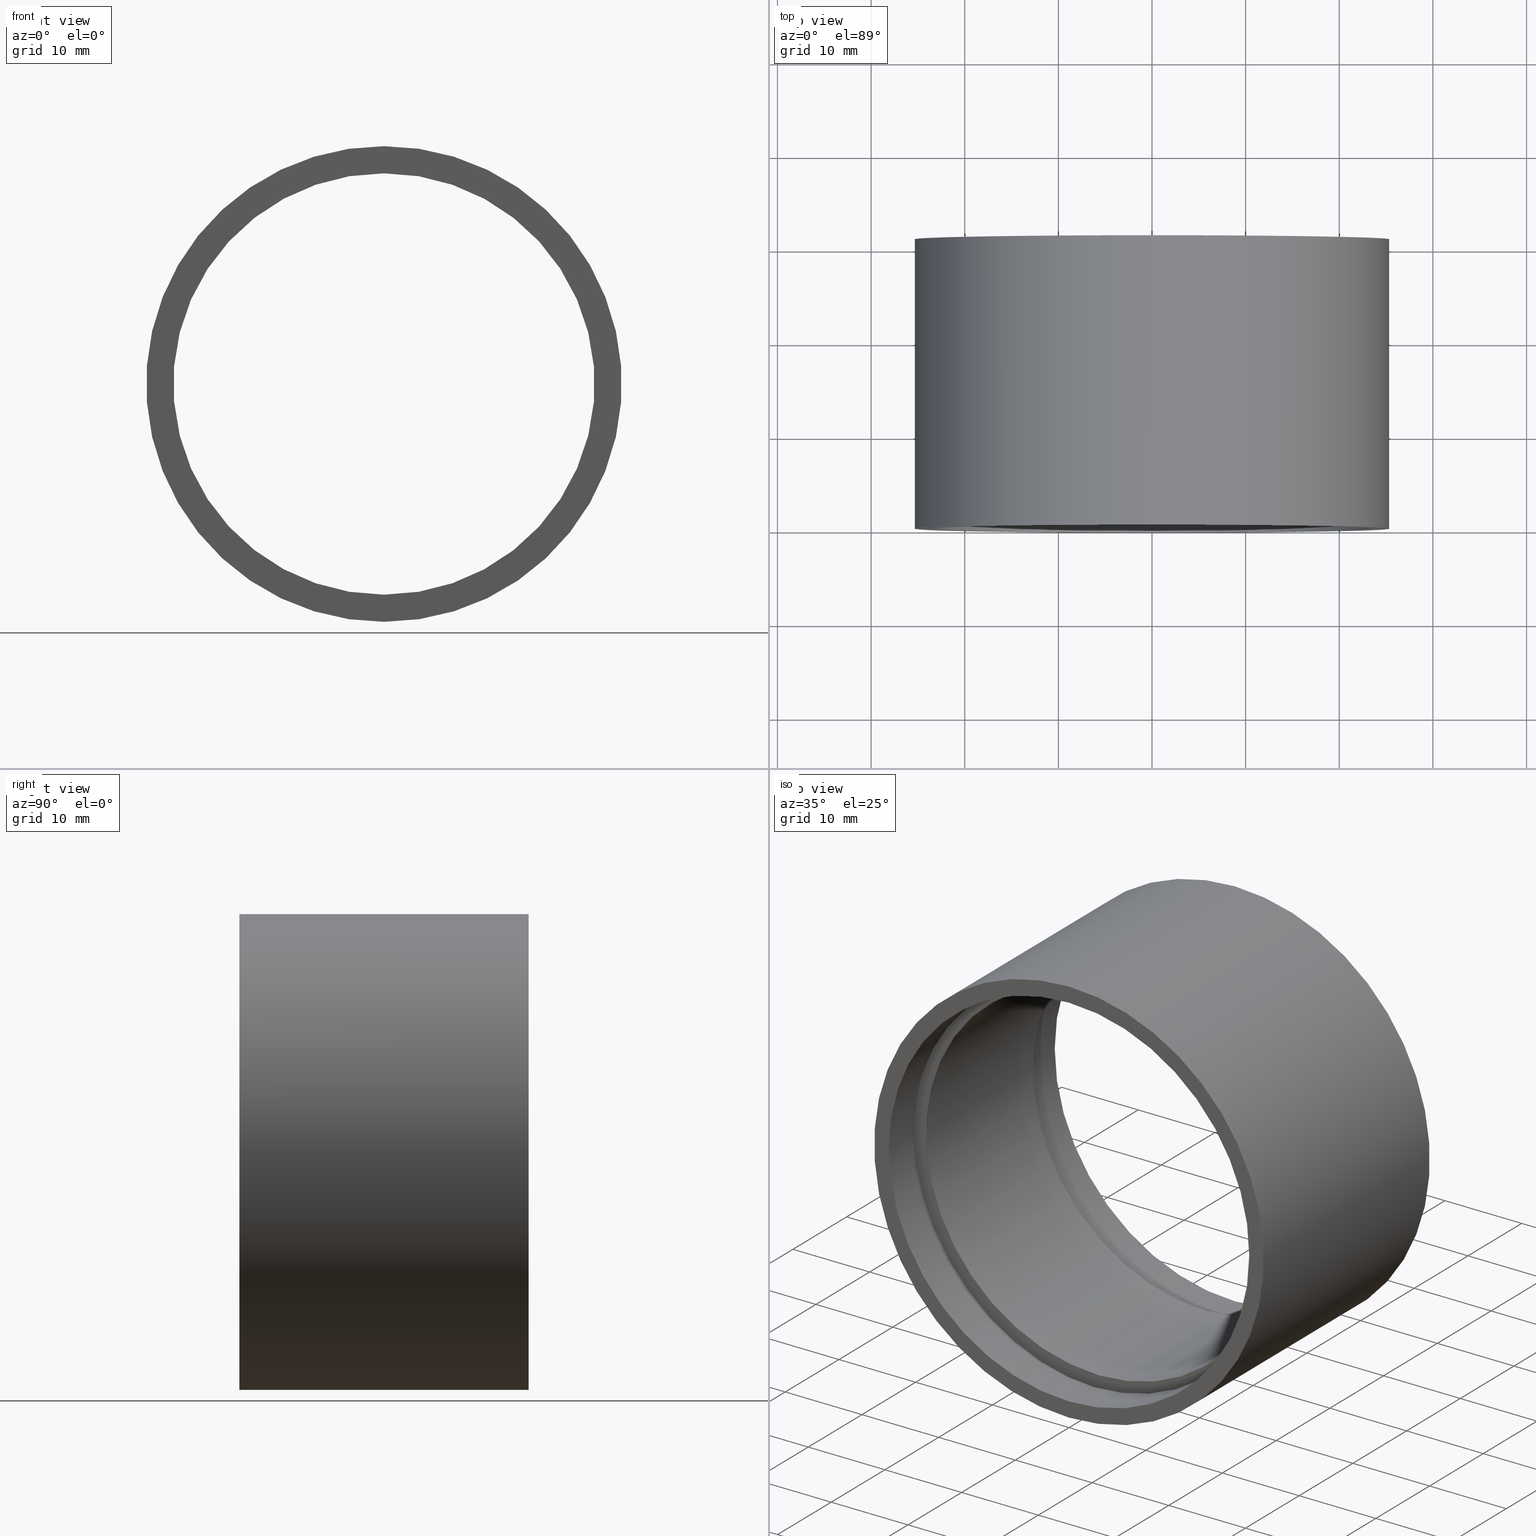
[diagram: canonical four-view strip — front | top / right | iso, engineering-drawing reading convention]
A machine part, canonical four-view strip (front | top / right | iso — engineering-drawing reading convention). The complete STEP part file that produces these views, byte-faithful:
ISO-10303-21;
HEADER;
FILE_DESCRIPTION (( 'STEP AP214' ),
    '1' );
FILE_NAME ('503020.STEP',
    '2019-09-06T02:07:05',
    ( '' ),
    ( '' ),
    'SwSTEP 2.0',
    'SolidWorks 2016',
    '' );
FILE_SCHEMA (( 'AUTOMOTIVE_DESIGN' ));
ENDSEC;

DATA;
#1 = ORIENTED_EDGE ( 'NONE', *, *, #202, .F. ) ;
#2 = VECTOR ( 'NONE', #167, 1000.000000000000000 ) ;
#3 = SURFACE_STYLE_USAGE ( .BOTH. , #408 ) ;
#4 = ADVANCED_FACE ( 'NONE', ( #508, #573 ), #184, .F. ) ;
#5 =( NAMED_UNIT ( * ) SI_UNIT ( $, .STERADIAN. ) SOLID_ANGLE_UNIT ( ) );
#6 = DIRECTION ( 'NONE',  ( 0.0000000000000000000, 0.0000000000000000000, 1.000000000000000000 ) ) ;
#7 = PRODUCT_DEFINITION_FORMATION_WITH_SPECIFIED_SOURCE ( '�κ�', '', #550, .NOT_KNOWN. ) ;
#8 = EDGE_CURVE ( 'NONE', #583, #181, #465, .T. ) ;
#9 =( GEOMETRIC_REPRESENTATION_CONTEXT ( 3 ) GLOBAL_UNCERTAINTY_ASSIGNED_CONTEXT ( ( #63 ) ) GLOBAL_UNIT_ASSIGNED_CONTEXT ( ( #447, #165, #57 ) ) REPRESENTATION_CONTEXT ( 'NONE', 'WORKASPACE' ) );
#10 = CIRCLE ( 'NONE', #500, 24.10000000000001900 ) ;
#11 = DIRECTION ( 'NONE',  ( -0.0000000000000000000, 1.000000000000000000, -0.0000000000000000000 ) ) ;
#12 = FILL_AREA_STYLE_COLOUR ( '', #243 ) ;
#13 = CYLINDRICAL_SURFACE ( 'NONE', #459, 23.50000000000002100 ) ;
#14 = CARTESIAN_POINT ( 'NONE',  ( 0.0000000000000000000, 30.89999999999998400, 0.0000000000000000000 ) ) ;
#15 = ORIENTED_EDGE ( 'NONE', *, *, #236, .F. ) ;
#16 = FACE_OUTER_BOUND ( 'NONE', #560, .T. ) ;
#17 = PLANE ( 'NONE',  #601 ) ;
#18 = FILL_AREA_STYLE ('',( #97 ) ) ;
#19 = SURFACE_SIDE_STYLE ('',( #119 ) ) ;
#20 = EDGE_CURVE ( 'NONE', #342, #89, #39, .T. ) ;
#21 = SURFACE_SIDE_STYLE ('',( #371 ) ) ;
#22 = DIRECTION ( 'NONE',  ( 0.0000000000000000000, 0.0000000000000000000, 1.000000000000000000 ) ) ;
#23 = CIRCLE ( 'NONE', #150, 24.10000000000003700 ) ;
#24 = PRESENTATION_LAYER_ASSIGNMENT (  '', '', ( #418 ) ) ;
#25 = CARTESIAN_POINT ( 'NONE',  ( 2.951398785945126000E-015, 26.39999999999997700, -24.10000000000003700 ) ) ;
#26 = ORIENTED_EDGE ( 'NONE', *, *, #65, .T. ) ;
#27 = CARTESIAN_POINT ( 'NONE',  ( 0.0000000000000000000, -2.775557561562891400E-014, 0.0000000000000000000 ) ) ;
#28 = DIRECTION ( 'NONE',  ( -0.0000000000000000000, 1.000000000000000000, -0.0000000000000000000 ) ) ;
#29 = DIRECTION ( 'NONE',  ( 0.0000000000000000000, 0.0000000000000000000, 1.000000000000000000 ) ) ;
#30 = VECTOR ( 'NONE', #577, 1000.000000000000000 ) ;
#31 = CIRCLE ( 'NONE', #186, 23.50000000000002100 ) ;
#32 = ORIENTED_EDGE ( 'NONE', *, *, #513, .F. ) ;
#33 = VERTEX_POINT ( 'NONE', #37 ) ;
#34 = AXIS2_PLACEMENT_3D ( 'NONE', #14, #204, #156 ) ;
#35 = ORIENTED_EDGE ( 'NONE', *, *, #20, .F. ) ;
#36 = ORIENTED_EDGE ( 'NONE', *, *, #177, .F. ) ;
#37 = CARTESIAN_POINT ( 'NONE',  ( 0.0000000000000000000, 4.499999999999976000, 23.50000000000002100 ) ) ;
#38 = VERTEX_POINT ( 'NONE', #84 ) ;
#39 = CIRCLE ( 'NONE', #137, 22.50000000000001800 ) ;
#40 = CARTESIAN_POINT ( 'NONE',  ( 0.0000000000000000000, 161.3761669434274500, 24.10000000000001900 ) ) ;
#41 = CARTESIAN_POINT ( 'NONE',  ( 0.0000000000000000000, 161.3761669434274500, 0.0000000000000000000 ) ) ;
#42 = DIRECTION ( 'NONE',  ( -0.0000000000000000000, 1.000000000000000000, -0.0000000000000000000 ) ) ;
#43 = DIRECTION ( 'NONE',  ( 0.0000000000000000000, 0.0000000000000000000, 1.000000000000000000 ) ) ;
#44 = EDGE_CURVE ( 'NONE', #133, #38, #294, .T. ) ;
#45 = VERTEX_POINT ( 'NONE', #334 ) ;
#46 =( GEOMETRIC_REPRESENTATION_CONTEXT ( 3 ) GLOBAL_UNCERTAINTY_ASSIGNED_CONTEXT ( ( #518 ) ) GLOBAL_UNIT_ASSIGNED_CONTEXT ( ( #53, #451, #309 ) ) REPRESENTATION_CONTEXT ( 'NONE', 'WORKASPACE' ) );
#47 = DIRECTION ( 'NONE',  ( 0.0000000000000000000, 0.0000000000000000000, 1.000000000000000000 ) ) ;
#48 = ORIENTED_EDGE ( 'NONE', *, *, #65, .F. ) ;
#49 = AXIS2_PLACEMENT_3D ( 'NONE', #135, #609, #149 ) ;
#50 = DIRECTION ( 'NONE',  ( 0.0000000000000000000, 0.0000000000000000000, 1.000000000000000000 ) ) ;
#51 = DIRECTION ( 'NONE',  ( -0.0000000000000000000, 1.000000000000000000, -0.0000000000000000000 ) ) ;
#52 = ADVANCED_FACE ( 'NONE', ( #333, #284 ), #423, .F. ) ;
#53 =( LENGTH_UNIT ( ) NAMED_UNIT ( * ) SI_UNIT ( .MILLI., .METRE. ) );
#54 = DIRECTION ( 'NONE',  ( 0.0000000000000000000, 0.0000000000000000000, 1.000000000000000000 ) ) ;
#55 = COLOUR_RGB ( '',1.000000000000000000, 1.000000000000000000, 1.000000000000000000 ) ;
#56 = CARTESIAN_POINT ( 'NONE',  ( 0.0000000000000000000, 161.3761669434274500, 0.0000000000000000000 ) ) ;
#57 =( NAMED_UNIT ( * ) SI_UNIT ( $, .STERADIAN. ) SOLID_ANGLE_UNIT ( ) );
#58 = VERTEX_POINT ( 'NONE', #91 ) ;
#59 = SHAPE_DEFINITION_REPRESENTATION ( #381, #74 ) ;
#60 = ORIENTED_EDGE ( 'NONE', *, *, #107, .T. ) ;
#61 = PLANE ( 'NONE',  #196 ) ;
#62 = FILL_AREA_STYLE ('',( #12 ) ) ;
#63 = UNCERTAINTY_MEASURE_WITH_UNIT (LENGTH_MEASURE( 1.000000000000000100E-005 ), #447, 'distance_accuracy_value', 'NONE');
#64 = EDGE_CURVE ( 'NONE', #427, #429, #527, .T. ) ;
#65 = EDGE_CURVE ( 'NONE', #598, #565, #302, .T. ) ;
#66 = AXIS2_PLACEMENT_3D ( 'NONE', #56, #159, #50 ) ;
#67 = ADVANCED_FACE ( 'NONE', ( #143 ), #130, .F. ) ;
#68 =( NAMED_UNIT ( * ) PLANE_ANGLE_UNIT ( ) SI_UNIT ( $, .RADIAN. ) );
#69 = FACE_OUTER_BOUND ( 'NONE', #174, .T. ) ;
#70 = APPLICATION_PROTOCOL_DEFINITION ( 'draft international standard', 'automotive_design', 1998, #316 ) ;
#71 = VERTEX_POINT ( 'NONE', #203 ) ;
#72 = EDGE_LOOP ( 'NONE', ( #170, #151, #557, #582 ) ) ;
#73 = DIRECTION ( 'NONE',  ( -0.0000000000000000000, 1.000000000000000000, 0.0000000000000000000 ) ) ;
#74 = ADVANCED_BREP_SHAPE_REPRESENTATION ( '503020', ( #155, #124 ), #414 ) ;
#75 = AXIS2_PLACEMENT_3D ( 'NONE', #194, #391, #251 ) ;
#76 = APPLICATION_CONTEXT ( 'automotive_design' ) ;
#77 = DIRECTION ( 'NONE',  ( 0.0000000000000000000, 0.0000000000000000000, 1.000000000000000000 ) ) ;
#78 = ORIENTED_EDGE ( 'NONE', *, *, #420, .T. ) ;
#79 = DIRECTION ( 'NONE',  ( 0.0000000000000000000, -0.0000000000000000000, -1.000000000000000000 ) ) ;
#80 = ORIENTED_EDGE ( 'NONE', *, *, #554, .F. ) ;
#81 = AXIS2_PLACEMENT_3D ( 'NONE', #228, #318, #581 ) ;
#82 = ORIENTED_EDGE ( 'NONE', *, *, #472, .F. ) ;
#83 = ORIENTED_EDGE ( 'NONE', *, *, #493, .F. ) ;
#84 = CARTESIAN_POINT ( 'NONE',  ( 0.0000000000000000000, 4.499999999999976000, 24.10000000000001900 ) ) ;
#85 = FACE_OUTER_BOUND ( 'NONE', #332, .T. ) ;
#86 = LINE ( 'NONE', #620, #411 ) ;
#87 = CARTESIAN_POINT ( 'NONE',  ( 0.0000000000000000000, 5.499999999999976900, 0.0000000000000000000 ) ) ;
#88 = EDGE_LOOP ( 'NONE', ( #395, #35, #464, #350 ) ) ;
#89 = VERTEX_POINT ( 'NONE', #614 ) ;
#90 =( GEOMETRIC_REPRESENTATION_CONTEXT ( 3 ) GLOBAL_UNCERTAINTY_ASSIGNED_CONTEXT ( ( #110 ) ) GLOBAL_UNIT_ASSIGNED_CONTEXT ( ( #215, #361, #5 ) ) REPRESENTATION_CONTEXT ( 'NONE', 'WORKASPACE' ) );
#91 = CARTESIAN_POINT ( 'NONE',  ( 0.0000000000000000000, 5.499999999999976900, 24.10000000000001900 ) ) ;
#92 = DIRECTION ( 'NONE',  ( -0.0000000000000000000, 1.000000000000000000, -0.0000000000000000000 ) ) ;
#93 = AXIS2_PLACEMENT_3D ( 'NONE', #595, #276, #501 ) ;
#94 = ORIENTED_EDGE ( 'NONE', *, *, #177, .T. ) ;
#95 = ORIENTED_EDGE ( 'NONE', *, *, #398, .F. ) ;
#96 = CARTESIAN_POINT ( 'NONE',  ( 2.877919977996282700E-015, 30.89999999999998400, -23.50000000000002100 ) ) ;
#97 = FILL_AREA_STYLE_COLOUR ( '', #55 ) ;
#98 = DIRECTION ( 'NONE',  ( 0.0000000000000000000, 0.0000000000000000000, 1.000000000000000000 ) ) ;
#99 = DIRECTION ( 'NONE',  ( -0.0000000000000000000, 1.000000000000000000, -0.0000000000000000000 ) ) ;
#100 = CIRCLE ( 'NONE', #351, 22.50000000000001800 ) ;
#101 = DIRECTION ( 'NONE',  ( -0.0000000000000000000, 1.000000000000000000, -0.0000000000000000000 ) ) ;
#102 = FACE_OUTER_BOUND ( 'NONE', #478, .T. ) ;
#103 = FACE_OUTER_BOUND ( 'NONE', #72, .T. ) ;
#104 = ORIENTED_EDGE ( 'NONE', *, *, #516, .F. ) ;
#105 = CARTESIAN_POINT ( 'NONE',  ( 2.755455298081546700E-015, 161.3761669434274500, -22.50000000000001800 ) ) ;
#106 = CIRCLE ( 'NONE', #329, 24.10000000000003700 ) ;
#107 = EDGE_CURVE ( 'NONE', #311, #468, #161, .T. ) ;
#108 = DIRECTION ( 'NONE',  ( 0.0000000000000000000, -1.000000000000000000, 0.0000000000000000000 ) ) ;
#109 = SURFACE_STYLE_USAGE ( .BOTH. , #586 ) ;
#110 = UNCERTAINTY_MEASURE_WITH_UNIT (LENGTH_MEASURE( 1.000000000000000100E-005 ), #215, 'distance_accuracy_value', 'NONE');
#111 = PRESENTATION_LAYER_ASSIGNMENT (  '', '', ( #131 ) ) ;
#112 =( NAMED_UNIT ( * ) PLANE_ANGLE_UNIT ( ) SI_UNIT ( $, .RADIAN. ) );
#113 = ADVANCED_FACE ( 'NONE', ( #407 ), #469, .F. ) ;
#114 = CARTESIAN_POINT ( 'NONE',  ( 0.0000000000000000000, 25.39999999999997700, 0.0000000000000000000 ) ) ;
#115 = PRESENTATION_STYLE_ASSIGNMENT (( #109 ) ) ;
#116 = EDGE_CURVE ( 'NONE', #330, #58, #378, .T. ) ;
#117 = CARTESIAN_POINT ( 'NONE',  ( 0.0000000000000000000, 25.39999999999997700, 0.0000000000000000000 ) ) ;
#118 = SURFACE_STYLE_FILL_AREA ( #250 ) ;
#119 = SURFACE_STYLE_FILL_AREA ( #524 ) ;
#120 = ADVANCED_FACE ( 'NONE', ( #16 ), #234, .F. ) ;
#121 = UNCERTAINTY_MEASURE_WITH_UNIT (LENGTH_MEASURE( 1.000000000000000100E-005 ), #481, 'distance_accuracy_value', 'NONE');
#122 = AXIS2_PLACEMENT_3D ( 'NONE', #431, #99, #532 ) ;
#123 = CIRCLE ( 'NONE', #362, 23.50000000000002100 ) ;
#124 = AXIS2_PLACEMENT_3D ( 'NONE', #164, #592, #271 ) ;
#125 =( LENGTH_UNIT ( ) NAMED_UNIT ( * ) SI_UNIT ( .MILLI., .METRE. ) );
#126 = ORIENTED_EDGE ( 'NONE', *, *, #520, .F. ) ;
#127 = CARTESIAN_POINT ( 'NONE',  ( 0.0000000000000000000, 161.3761669434274500, 0.0000000000000000000 ) ) ;
#128 = ORIENTED_EDGE ( 'NONE', *, *, #516, .T. ) ;
#129 = EDGE_CURVE ( 'NONE', #89, #45, #280, .T. ) ;
#130 = CYLINDRICAL_SURFACE ( 'NONE', #75, 24.10000000000003700 ) ;
#131 = STYLED_ITEM ( 'NONE', ( #171 ), #74 ) ;
#132 =( NAMED_UNIT ( * ) PLANE_ANGLE_UNIT ( ) SI_UNIT ( $, .RADIAN. ) );
#133 = VERTEX_POINT ( 'NONE', #448 ) ;
#134 = AXIS2_PLACEMENT_3D ( 'NONE', #41, #623, #43 ) ;
#135 = CARTESIAN_POINT ( 'NONE',  ( 0.0000000000000000000, 4.499999999999976000, 0.0000000000000000000 ) ) ;
#136 = DIRECTION ( 'NONE',  ( 0.0000000000000000000, 0.0000000000000000000, 1.000000000000000000 ) ) ;
#137 = AXIS2_PLACEMENT_3D ( 'NONE', #87, #422, #290 ) ;
#138 = CARTESIAN_POINT ( 'NONE',  ( 0.0000000000000000000, 30.89999999999998400, 25.40000000000002000 ) ) ;
#139 = AXIS2_PLACEMENT_3D ( 'NONE', #221, #551, #455 ) ;
#140 = CARTESIAN_POINT ( 'NONE',  ( 0.0000000000000000000, 26.39999999999997700, 0.0000000000000000000 ) ) ;
#141 = AXIS2_PLACEMENT_3D ( 'NONE', #295, #521, #233 ) ;
#142 = FILL_AREA_STYLE_COLOUR ( '', #292 ) ;
#143 = FACE_OUTER_BOUND ( 'NONE', #283, .T. ) ;
#144 = CARTESIAN_POINT ( 'NONE',  ( 0.0000000000000000000, 25.39999999999997700, 22.50000000000001800 ) ) ;
#145 = DIRECTION ( 'NONE',  ( -0.0000000000000000000, 1.000000000000000000, -0.0000000000000000000 ) ) ;
#146 = DIRECTION ( 'NONE',  ( 0.0000000000000000000, 0.0000000000000000000, 1.000000000000000000 ) ) ;
#147 = CARTESIAN_POINT ( 'NONE',  ( 2.951398785945126000E-015, 161.3761669434274500, -24.10000000000003700 ) ) ;
#148 =( NAMED_UNIT ( * ) SI_UNIT ( $, .STERADIAN. ) SOLID_ANGLE_UNIT ( ) );
#149 = DIRECTION ( 'NONE',  ( 0.0000000000000000000, 0.0000000000000000000, 1.000000000000000000 ) ) ;
#150 = AXIS2_PLACEMENT_3D ( 'NONE', #140, #188, #343 ) ;
#151 = ORIENTED_EDGE ( 'NONE', *, *, #463, .F. ) ;
#152 = AXIS2_PLACEMENT_3D ( 'NONE', #523, #291, #213 ) ;
#153 = DIRECTION ( 'NONE',  ( -0.0000000000000000000, 1.000000000000000000, -0.0000000000000000000 ) ) ;
#154 = DIRECTION ( 'NONE',  ( 0.0000000000000000000, 0.0000000000000000000, 1.000000000000000000 ) ) ;
#155 = MANIFOLD_SOLID_BREP ( '��ת1', #470 ) ;
#156 = DIRECTION ( 'NONE',  ( 0.0000000000000000000, 0.0000000000000000000, 1.000000000000000000 ) ) ;
#157 = DIRECTION ( 'NONE',  ( -0.0000000000000000000, 1.000000000000000000, -0.0000000000000000000 ) ) ;
#158 = CARTESIAN_POINT ( 'NONE',  ( 22.50000000000001800, 25.39999999999997700, 0.0000000000000000000 ) ) ;
#159 = DIRECTION ( 'NONE',  ( -0.0000000000000000000, 1.000000000000000000, -0.0000000000000000000 ) ) ;
#160 = ORIENTED_EDGE ( 'NONE', *, *, #116, .T. ) ;
#161 = CIRCLE ( 'NONE', #562, 25.40000000000002000 ) ;
#162 = APPLICATION_PROTOCOL_DEFINITION ( 'draft international standard', 'automotive_design', 1998, #76 ) ;
#163 = ADVANCED_FACE ( 'NONE', ( #102, #474 ), #319, .F. ) ;
#164 = CARTESIAN_POINT ( 'NONE',  ( 0.0000000000000000000, 0.0000000000000000000, 0.0000000000000000000 ) ) ;
#165 =( NAMED_UNIT ( * ) PLANE_ANGLE_UNIT ( ) SI_UNIT ( $, .RADIAN. ) );
#166 = CIRCLE ( 'NONE', #286, 22.50000000000001800 ) ;
#167 = DIRECTION ( 'NONE',  ( -0.0000000000000000000, 1.000000000000000000, -0.0000000000000000000 ) ) ;
#168 = EDGE_CURVE ( 'NONE', #301, #522, #425, .T. ) ;
#169 = ORIENTED_EDGE ( 'NONE', *, *, #584, .F. ) ;
#170 = ORIENTED_EDGE ( 'NONE', *, *, #336, .F. ) ;
#171 = PRESENTATION_STYLE_ASSIGNMENT (( #273 ) ) ;
#172 = EDGE_LOOP ( 'NONE', ( #384, #82 ) ) ;
#173 = MECHANICAL_DESIGN_GEOMETRIC_PRESENTATION_REPRESENTATION (  '', ( #131 ), #212 ) ;
#174 = EDGE_LOOP ( 'NONE', ( #287, #437 ) ) ;
#175 = UNCERTAINTY_MEASURE_WITH_UNIT (LENGTH_MEASURE( 1.000000000000000100E-005 ), #275, 'distance_accuracy_value', 'NONE');
#176 = DIRECTION ( 'NONE',  ( 0.0000000000000000000, 0.0000000000000000000, 1.000000000000000000 ) ) ;
#177 = EDGE_CURVE ( 'NONE', #583, #565, #262, .T. ) ;
#178 = CYLINDRICAL_SURFACE ( 'NONE', #471, 25.40000000000001600 ) ;
#179 =( NAMED_UNIT ( * ) SI_UNIT ( $, .STERADIAN. ) SOLID_ANGLE_UNIT ( ) );
#180 = EDGE_LOOP ( 'NONE', ( #15, #229 ) ) ;
#181 = VERTEX_POINT ( 'NONE', #488 ) ;
#182 = AXIS2_PLACEMENT_3D ( 'NONE', #158, #373, #79 ) ;
#183 = UNCERTAINTY_MEASURE_WITH_UNIT (LENGTH_MEASURE( 1.000000000000000100E-005 ), #453, 'distance_accuracy_value', 'NONE');
#184 = PLANE ( 'NONE',  #377 ) ;
#185 = CARTESIAN_POINT ( 'NONE',  ( 0.0000000000000000000, 161.3761669434274500, 0.0000000000000000000 ) ) ;
#186 = AXIS2_PLACEMENT_3D ( 'NONE', #486, #348, #306 ) ;
#187 = PRESENTATION_STYLE_ASSIGNMENT (( #387 ) ) ;
#188 = DIRECTION ( 'NONE',  ( -0.0000000000000000000, 1.000000000000000000, -0.0000000000000000000 ) ) ;
#189 = DIRECTION ( 'NONE',  ( -0.0000000000000000000, 1.000000000000000000, -0.0000000000000000000 ) ) ;
#190 = EDGE_LOOP ( 'NONE', ( #548, #534, #26, #36 ) ) ;
#191 = VERTEX_POINT ( 'NONE', #144 ) ;
#192 = SURFACE_SIDE_STYLE ('',( #357 ) ) ;
#193 = CARTESIAN_POINT ( 'NONE',  ( 0.0000000000000000000, 26.39999999999997700, 23.50000000000002100 ) ) ;
#194 = CARTESIAN_POINT ( 'NONE',  ( 0.0000000000000000000, 161.3761669434274500, 0.0000000000000000000 ) ) ;
#195 = LINE ( 'NONE', #380, #545 ) ;
#196 = AXIS2_PLACEMENT_3D ( 'NONE', #356, #108, #533 ) ;
#197 = VECTOR ( 'NONE', #153, 1000.000000000000000 ) ;
#198 = DIRECTION ( 'NONE',  ( 0.0000000000000000000, 0.0000000000000000000, 1.000000000000000000 ) ) ;
#199 = ORIENTED_EDGE ( 'NONE', *, *, #463, .T. ) ;
#200 = CARTESIAN_POINT ( 'NONE',  ( 0.0000000000000000000, -2.775557561562891400E-014, 23.50000000000002100 ) ) ;
#201 = ORIENTED_EDGE ( 'NONE', *, *, #8, .F. ) ;
#202 = EDGE_CURVE ( 'NONE', #321, #33, #256, .T. ) ;
#203 = CARTESIAN_POINT ( 'NONE',  ( 2.877919977996282700E-015, 26.39999999999997700, -23.50000000000002100 ) ) ;
#204 = DIRECTION ( 'NONE',  ( -0.0000000000000000000, 1.000000000000000000, -0.0000000000000000000 ) ) ;
#205 = ADVANCED_FACE ( 'NONE', ( #415 ), #525, .F. ) ;
#206 = AXIS2_PLACEMENT_3D ( 'NONE', #530, #145, #483 ) ;
#207 = DIRECTION ( 'NONE',  ( -0.0000000000000000000, 1.000000000000000000, -0.0000000000000000000 ) ) ;
#208 = ORIENTED_EDGE ( 'NONE', *, *, #398, .T. ) ;
#209 = ORIENTED_EDGE ( 'NONE', *, *, #564, .T. ) ;
#210 = CARTESIAN_POINT ( 'NONE',  ( 0.0000000000000000000, 161.3761669434274500, 22.50000000000001800 ) ) ;
#211 = ADVANCED_FACE ( 'NONE', ( #227 ), #235, .F. ) ;
#212 =( GEOMETRIC_REPRESENTATION_CONTEXT ( 3 ) GLOBAL_UNCERTAINTY_ASSIGNED_CONTEXT ( ( #244 ) ) GLOBAL_UNIT_ASSIGNED_CONTEXT ( ( #125, #217, #363 ) ) REPRESENTATION_CONTEXT ( 'NONE', 'WORKASPACE' ) );
#213 = DIRECTION ( 'NONE',  ( 0.0000000000000000000, 0.0000000000000000000, 1.000000000000000000 ) ) ;
#214 = ADVANCED_FACE ( 'NONE', ( #374 ), #580, .F. ) ;
#215 =( LENGTH_UNIT ( ) NAMED_UNIT ( * ) SI_UNIT ( .MILLI., .METRE. ) );
#216 = PRESENTATION_STYLE_ASSIGNMENT (( #400 ) ) ;
#217 =( NAMED_UNIT ( * ) PLANE_ANGLE_UNIT ( ) SI_UNIT ( $, .RADIAN. ) );
#218 = EDGE_LOOP ( 'NONE', ( #567, #353 ) ) ;
#219 = ORIENTED_EDGE ( 'NONE', *, *, #64, .T. ) ;
#220 = STYLED_ITEM ( 'NONE', ( #358 ), #446 ) ;
#221 = CARTESIAN_POINT ( 'NONE',  ( 0.0000000000000000000, 26.39999999999997700, 0.0000000000000000000 ) ) ;
#222 = VECTOR ( 'NONE', #157, 1000.000000000000000 ) ;
#223 = DIRECTION ( 'NONE',  ( 0.0000000000000000000, -1.000000000000000000, 0.0000000000000000000 ) ) ;
#224 = AXIS2_PLACEMENT_3D ( 'NONE', #444, #101, #6 ) ;
#225 = ORIENTED_EDGE ( 'NONE', *, *, #44, .F. ) ;
#226 = EDGE_LOOP ( 'NONE', ( #225, #571, #160, #95 ) ) ;
#227 = FACE_OUTER_BOUND ( 'NONE', #376, .T. ) ;
#228 = CARTESIAN_POINT ( 'NONE',  ( 0.0000000000000000000, -2.775557561562891400E-014, 0.0000000000000000000 ) ) ;
#229 = ORIENTED_EDGE ( 'NONE', *, *, #116, .F. ) ;
#230 =( GEOMETRIC_REPRESENTATION_CONTEXT ( 3 ) GLOBAL_UNCERTAINTY_ASSIGNED_CONTEXT ( ( #121 ) ) GLOBAL_UNIT_ASSIGNED_CONTEXT ( ( #481, #433, #570 ) ) REPRESENTATION_CONTEXT ( 'NONE', 'WORKASPACE' ) );
#231 = ORIENTED_EDGE ( 'NONE', *, *, #8, .T. ) ;
#232 = UNCERTAINTY_MEASURE_WITH_UNIT (LENGTH_MEASURE( 1.000000000000000100E-005 ), #349, 'distance_accuracy_value', 'NONE');
#233 = DIRECTION ( 'NONE',  ( 0.0000000000000000000, 0.0000000000000000000, 1.000000000000000000 ) ) ;
#234 = CYLINDRICAL_SURFACE ( 'NONE', #379, 23.50000000000002100 ) ;
#235 = CYLINDRICAL_SURFACE ( 'NONE', #254, 23.50000000000002100 ) ;
#236 = EDGE_CURVE ( 'NONE', #58, #330, #10, .T. ) ;
#237 = ORIENTED_EDGE ( 'NONE', *, *, #272, .F. ) ;
#238 = CIRCLE ( 'NONE', #139, 23.50000000000002100 ) ;
#239 = FILL_AREA_STYLE_COLOUR ( '', #267 ) ;
#240 = CARTESIAN_POINT ( 'NONE',  ( 2.951398785945123600E-015, 5.499999999999976900, -24.10000000000001900 ) ) ;
#241 = PRESENTATION_LAYER_ASSIGNMENT (  '', '', ( #260 ) ) ;
#242 = CARTESIAN_POINT ( 'NONE',  ( 2.877919977996282700E-015, 161.3761669434274500, -23.50000000000002100 ) ) ;
#243 = COLOUR_RGB ( '',1.000000000000000000, 1.000000000000000000, 1.000000000000000000 ) ;
#244 = UNCERTAINTY_MEASURE_WITH_UNIT (LENGTH_MEASURE( 1.000000000000000100E-005 ), #125, 'distance_accuracy_value', 'NONE');
#245 = DIRECTION ( 'NONE',  ( 0.0000000000000000000, 0.0000000000000000000, 1.000000000000000000 ) ) ;
#246 = SURFACE_STYLE_FILL_AREA ( #255 ) ;
#247 = DIRECTION ( 'NONE',  ( -0.0000000000000000000, 1.000000000000000000, -0.0000000000000000000 ) ) ;
#248 = ORIENTED_EDGE ( 'NONE', *, *, #420, .F. ) ;
#249 = EDGE_LOOP ( 'NONE', ( #326, #605, #258, #80 ) ) ;
#250 = FILL_AREA_STYLE ('',( #142 ) ) ;
#251 = DIRECTION ( 'NONE',  ( 0.0000000000000000000, 0.0000000000000000000, 1.000000000000000000 ) ) ;
#252 = CARTESIAN_POINT ( 'NONE',  ( 0.0000000000000000000, 25.39999999999997700, 0.0000000000000000000 ) ) ;
#253 = DIRECTION ( 'NONE',  ( -0.0000000000000000000, 1.000000000000000000, -0.0000000000000000000 ) ) ;
#254 = AXIS2_PLACEMENT_3D ( 'NONE', #127, #511, #29 ) ;
#255 = FILL_AREA_STYLE ('',( #354 ) ) ;
#256 = LINE ( 'NONE', #339, #30 ) ;
#257 = CARTESIAN_POINT ( 'NONE',  ( 2.877919977996282700E-015, 4.499999999999976000, -23.50000000000002100 ) ) ;
#258 = ORIENTED_EDGE ( 'NONE', *, *, #402, .T. ) ;
#259 = ADVANCED_FACE ( 'NONE', ( #367, #85 ), #265, .F. ) ;
#260 = STYLED_ITEM ( 'NONE', ( #115 ), #205 ) ;
#261 = DIRECTION ( 'NONE',  ( 0.0000000000000000000, 0.0000000000000000000, 1.000000000000000000 ) ) ;
#262 = LINE ( 'NONE', #572, #602 ) ;
#263 = DIRECTION ( 'NONE',  ( -0.0000000000000000000, 1.000000000000000000, -0.0000000000000000000 ) ) ;
#264 = CIRCLE ( 'NONE', #224, 23.50000000000002100 ) ;
#265 = PLANE ( 'NONE',  #182 ) ;
#266 = ORIENTED_EDGE ( 'NONE', *, *, #336, .T. ) ;
#267 = COLOUR_RGB ( '',1.000000000000000000, 1.000000000000000000, 1.000000000000000000 ) ;
#268 = EDGE_CURVE ( 'NONE', #191, #45, #166, .T. ) ;
#269 = CARTESIAN_POINT ( 'NONE',  ( 23.50000000000002100, 30.89999999999998400, 0.0000000000000000000 ) ) ;
#270 = AXIS2_PLACEMENT_3D ( 'NONE', #416, #434, #22 ) ;
#271 = DIRECTION ( 'NONE',  ( 1.000000000000000000, 0.0000000000000000000, 0.0000000000000000000 ) ) ;
#272 = EDGE_CURVE ( 'NONE', #389, #427, #195, .T. ) ;
#273 = SURFACE_STYLE_USAGE ( .BOTH. , #21 ) ;
#274 = VECTOR ( 'NONE', #297, 1000.000000000000000 ) ;
#275 =( LENGTH_UNIT ( ) NAMED_UNIT ( * ) SI_UNIT ( .MILLI., .METRE. ) );
#276 = DIRECTION ( 'NONE',  ( -0.0000000000000000000, 1.000000000000000000, -0.0000000000000000000 ) ) ;
#277 = ORIENTED_EDGE ( 'NONE', *, *, #584, .T. ) ;
#278 = DIRECTION ( 'NONE',  ( -0.0000000000000000000, 1.000000000000000000, -0.0000000000000000000 ) ) ;
#279 = AXIS2_PLACEMENT_3D ( 'NONE', #477, #299, #98 ) ;
#280 = LINE ( 'NONE', #105, #222 ) ;
#281 = FACE_BOUND ( 'NONE', #172, .T. ) ;
#282 = AXIS2_PLACEMENT_3D ( 'NONE', #340, #247, #47 ) ;
#283 = EDGE_LOOP ( 'NONE', ( #608, #201, #94, #421 ) ) ;
#284 = FACE_BOUND ( 'NONE', #360, .T. ) ;
#285 = CYLINDRICAL_SURFACE ( 'NONE', #270, 24.10000000000001900 ) ;
#286 = AXIS2_PLACEMENT_3D ( 'NONE', #114, #11, #154 ) ;
#287 = ORIENTED_EDGE ( 'NONE', *, *, #461, .T. ) ;
#288 = CARTESIAN_POINT ( 'NONE',  ( 0.0000000000000000000, 5.499999999999976900, 0.0000000000000000000 ) ) ;
#289 = AXIS2_PLACEMENT_3D ( 'NONE', #467, #73, #176 ) ;
#290 = DIRECTION ( 'NONE',  ( 0.0000000000000000000, 0.0000000000000000000, 1.000000000000000000 ) ) ;
#291 = DIRECTION ( 'NONE',  ( -0.0000000000000000000, 1.000000000000000000, -0.0000000000000000000 ) ) ;
#292 = COLOUR_RGB ( '',1.000000000000000000, 1.000000000000000000, 1.000000000000000000 ) ;
#293 = EDGE_LOOP ( 'NONE', ( #502, #540 ) ) ;
#294 = CIRCLE ( 'NONE', #49, 24.10000000000001900 ) ;
#295 = CARTESIAN_POINT ( 'NONE',  ( 0.0000000000000000000, 25.39999999999997700, 0.0000000000000000000 ) ) ;
#296 = PRESENTATION_LAYER_ASSIGNMENT (  '', '', ( #517 ) ) ;
#297 = DIRECTION ( 'NONE',  ( -0.0000000000000000000, 1.000000000000000000, -0.0000000000000000000 ) ) ;
#298 = LINE ( 'NONE', #147, #442 ) ;
#299 = DIRECTION ( 'NONE',  ( -0.0000000000000000000, 1.000000000000000000, 0.0000000000000000000 ) ) ;
#300 = EDGE_CURVE ( 'NONE', #89, #342, #100, .T. ) ;
#301 = VERTEX_POINT ( 'NONE', #498 ) ;
#302 = CIRCLE ( 'NONE', #323, 24.10000000000003700 ) ;
#303 = DIRECTION ( 'NONE',  ( -0.0000000000000000000, 1.000000000000000000, -0.0000000000000000000 ) ) ;
#304 = ADVANCED_FACE ( 'NONE', ( #410 ), #285, .F. ) ;
#305 = AXIS2_PLACEMENT_3D ( 'NONE', #288, #426, #136 ) ;
#306 = DIRECTION ( 'NONE',  ( 0.0000000000000000000, 0.0000000000000000000, 1.000000000000000000 ) ) ;
#307 = DIRECTION ( 'NONE',  ( 0.0000000000000000000, 0.0000000000000000000, 1.000000000000000000 ) ) ;
#308 = FACE_OUTER_BOUND ( 'NONE', #538, .T. ) ;
#309 =( NAMED_UNIT ( * ) SI_UNIT ( $, .STERADIAN. ) SOLID_ANGLE_UNIT ( ) );
#310 = ORIENTED_EDGE ( 'NONE', *, *, #20, .T. ) ;
#311 = VERTEX_POINT ( 'NONE', #138 ) ;
#312 = DIRECTION ( 'NONE',  ( 0.0000000000000000000, 0.0000000000000000000, 1.000000000000000000 ) ) ;
#313 = SURFACE_STYLE_USAGE ( .BOTH. , #497 ) ;
#314 = EDGE_CURVE ( 'NONE', #429, #427, #123, .T. ) ;
#315 = SURFACE_STYLE_USAGE ( .BOTH. , #457 ) ;
#316 = APPLICATION_CONTEXT ( 'automotive_design' ) ;
#317 = CIRCLE ( 'NONE', #93, 23.50000000000002100 ) ;
#318 = DIRECTION ( 'NONE',  ( -0.0000000000000000000, 1.000000000000000000, -0.0000000000000000000 ) ) ;
#319 = PLANE ( 'NONE',  #289 ) ;
#320 = ORIENTED_EDGE ( 'NONE', *, *, #568, .T. ) ;
#321 = VERTEX_POINT ( 'NONE', #200 ) ;
#322 =( NAMED_UNIT ( * ) PLANE_ANGLE_UNIT ( ) SI_UNIT ( $, .RADIAN. ) );
#323 = AXIS2_PLACEMENT_3D ( 'NONE', #576, #303, #198 ) ;
#324 = DIRECTION ( 'NONE',  ( -0.0000000000000000000, 1.000000000000000000, -0.0000000000000000000 ) ) ;
#325 = AXIS2_PLACEMENT_3D ( 'NONE', #462, #278, #600 ) ;
#326 = ORIENTED_EDGE ( 'NONE', *, *, #300, .F. ) ;
#327 = ORIENTED_EDGE ( 'NONE', *, *, #168, .T. ) ;
#328 = LINE ( 'NONE', #494, #197 ) ;
#329 = AXIS2_PLACEMENT_3D ( 'NONE', #117, #324, #543 ) ;
#330 = VERTEX_POINT ( 'NONE', #240 ) ;
#331 = ORIENTED_EDGE ( 'NONE', *, *, #372, .T. ) ;
#332 = EDGE_LOOP ( 'NONE', ( #231, #209 ) ) ;
#333 = FACE_OUTER_BOUND ( 'NONE', #419, .T. ) ;
#334 = CARTESIAN_POINT ( 'NONE',  ( 2.755455298081546700E-015, 25.39999999999997700, -22.50000000000001800 ) ) ;
#335 = CARTESIAN_POINT ( 'NONE',  ( 0.0000000000000000000, 161.3761669434274500, 25.40000000000001600 ) ) ;
#336 = EDGE_CURVE ( 'NONE', #489, #504, #607, .T. ) ;
#337 = AXIS2_PLACEMENT_3D ( 'NONE', #541, #355, #312 ) ;
#338 = DIRECTION ( 'NONE',  ( -0.0000000000000000000, 1.000000000000000000, -0.0000000000000000000 ) ) ;
#339 = CARTESIAN_POINT ( 'NONE',  ( 0.0000000000000000000, 161.3761669434274500, 23.50000000000002100 ) ) ;
#340 = CARTESIAN_POINT ( 'NONE',  ( 0.0000000000000000000, 161.3761669434274500, 0.0000000000000000000 ) ) ;
#341 = VECTOR ( 'NONE', #42, 1000.000000000000000 ) ;
#342 = VERTEX_POINT ( 'NONE', #575 ) ;
#343 = DIRECTION ( 'NONE',  ( 0.0000000000000000000, 0.0000000000000000000, 1.000000000000000000 ) ) ;
#344 = ORIENTED_EDGE ( 'NONE', *, *, #461, .F. ) ;
#345 = CARTESIAN_POINT ( 'NONE',  ( 0.0000000000000000000, 5.499999999999976900, 0.0000000000000000000 ) ) ;
#346 = ADVANCED_FACE ( 'NONE', ( #531 ), #485, .T. ) ;
#347 = PRESENTATION_LAYER_ASSIGNMENT (  '', '', ( #622 ) ) ;
#348 = DIRECTION ( 'NONE',  ( -0.0000000000000000000, 1.000000000000000000, -0.0000000000000000000 ) ) ;
#349 =( LENGTH_UNIT ( ) NAMED_UNIT ( * ) SI_UNIT ( .MILLI., .METRE. ) );
#350 = ORIENTED_EDGE ( 'NONE', *, *, #268, .T. ) ;
#351 = AXIS2_PLACEMENT_3D ( 'NONE', #345, #51, #54 ) ;
#352 = CIRCLE ( 'NONE', #386, 25.40000000000001300 ) ;
#353 = ORIENTED_EDGE ( 'NONE', *, *, #314, .F. ) ;
#354 = FILL_AREA_STYLE_COLOUR ( '', #369 ) ;
#355 = DIRECTION ( 'NONE',  ( -0.0000000000000000000, 1.000000000000000000, -0.0000000000000000000 ) ) ;
#356 = CARTESIAN_POINT ( 'NONE',  ( 23.50000000000002100, 4.499999999999984900, 0.0000000000000000000 ) ) ;
#357 = SURFACE_STYLE_FILL_AREA ( #428 ) ;
#358 = PRESENTATION_STYLE_ASSIGNMENT (( #3 ) ) ;
#359 = EDGE_CURVE ( 'NONE', #565, #598, #23, .T. ) ;
#360 = EDGE_LOOP ( 'NONE', ( #199, #556 ) ) ;
#361 =( NAMED_UNIT ( * ) PLANE_ANGLE_UNIT ( ) SI_UNIT ( $, .RADIAN. ) );
#362 = AXIS2_PLACEMENT_3D ( 'NONE', #611, #390, #619 ) ;
#363 =( NAMED_UNIT ( * ) SI_UNIT ( $, .STERADIAN. ) SOLID_ANGLE_UNIT ( ) );
#364 = ADVANCED_FACE ( 'NONE', ( #366 ), #178, .T. ) ;
#365 = PRODUCT_CONTEXT ( 'NONE', #316, 'mechanical' ) ;
#366 = FACE_OUTER_BOUND ( 'NONE', #438, .T. ) ;
#367 = FACE_BOUND ( 'NONE', #293, .T. ) ;
#368 =( NAMED_UNIT ( * ) SI_UNIT ( $, .STERADIAN. ) SOLID_ANGLE_UNIT ( ) );
#369 = COLOUR_RGB ( '',1.000000000000000000, 1.000000000000000000, 1.000000000000000000 ) ;
#370 = ORIENTED_EDGE ( 'NONE', *, *, #168, .F. ) ;
#371 = SURFACE_STYLE_FILL_AREA ( #413 ) ;
#372 = EDGE_CURVE ( 'NONE', #522, #311, #382, .T. ) ;
#373 = DIRECTION ( 'NONE',  ( 0.0000000000000000000, -1.000000000000000000, 0.0000000000000000000 ) ) ;
#374 = FACE_OUTER_BOUND ( 'NONE', #190, .T. ) ;
#375 = COLOUR_RGB ( '',1.000000000000000000, 1.000000000000000000, 1.000000000000000000 ) ;
#376 = EDGE_LOOP ( 'NONE', ( #126, #266, #388, #1 ) ) ;
#377 = AXIS2_PLACEMENT_3D ( 'NONE', #610, #424, #245 ) ;
#378 = CIRCLE ( 'NONE', #305, 24.10000000000001900 ) ;
#379 = AXIS2_PLACEMENT_3D ( 'NONE', #185, #189, #307 ) ;
#380 = CARTESIAN_POINT ( 'NONE',  ( 0.0000000000000000000, 161.3761669434274500, 23.50000000000002100 ) ) ;
#381 = PRODUCT_DEFINITION_SHAPE ( 'NONE', 'NONE',  #599 ) ;
#382 = LINE ( 'NONE', #335, #454 ) ;
#383 = CYLINDRICAL_SURFACE ( 'NONE', #282, 22.50000000000001800 ) ;
#384 = ORIENTED_EDGE ( 'NONE', *, *, #484, .F. ) ;
#385 = EDGE_CURVE ( 'NONE', #133, #330, #86, .T. ) ;
#386 = AXIS2_PLACEMENT_3D ( 'NONE', #27, #28, #77 ) ;
#387 = SURFACE_STYLE_USAGE ( .BOTH. , #192 ) ;
#388 = ORIENTED_EDGE ( 'NONE', *, *, #472, .T. ) ;
#389 = VERTEX_POINT ( 'NONE', #193 ) ;
#390 = DIRECTION ( 'NONE',  ( -0.0000000000000000000, 1.000000000000000000, -0.0000000000000000000 ) ) ;
#391 = DIRECTION ( 'NONE',  ( -0.0000000000000000000, 1.000000000000000000, -0.0000000000000000000 ) ) ;
#392 =( GEOMETRIC_REPRESENTATION_CONTEXT ( 3 ) GLOBAL_UNCERTAINTY_ASSIGNED_CONTEXT ( ( #621 ) ) GLOBAL_UNIT_ASSIGNED_CONTEXT ( ( #578, #112, #490 ) ) REPRESENTATION_CONTEXT ( 'NONE', 'WORKASPACE' ) );
#393 = CARTESIAN_POINT ( 'NONE',  ( 0.0000000000000000000, 161.3761669434274500, 0.0000000000000000000 ) ) ;
#394 = DIRECTION ( 'NONE',  ( -0.0000000000000000000, 1.000000000000000000, -0.0000000000000000000 ) ) ;
#395 = ORIENTED_EDGE ( 'NONE', *, *, #129, .F. ) ;
#396 = EDGE_CURVE ( 'NONE', #181, #598, #298, .T. ) ;
#397 = ADVANCED_FACE ( 'NONE', ( #506 ), #383, .F. ) ;
#398 = EDGE_CURVE ( 'NONE', #38, #58, #499, .T. ) ;
#399 = SURFACE_SIDE_STYLE ('',( #246 ) ) ;
#400 = SURFACE_STYLE_USAGE ( .BOTH. , #399 ) ;
#401 = CIRCLE ( 'NONE', #337, 23.50000000000002100 ) ;
#402 = EDGE_CURVE ( 'NONE', #45, #191, #603, .T. ) ;
#403 = DIRECTION ( 'NONE',  ( 0.0000000000000000000, 0.0000000000000000000, 1.000000000000000000 ) ) ;
#404 = ORIENTED_EDGE ( 'NONE', *, *, #272, .T. ) ;
#405 = MECHANICAL_DESIGN_GEOMETRIC_PRESENTATION_REPRESENTATION (  '', ( #517 ), #616 ) ;
#406 = FACE_BOUND ( 'NONE', #218, .T. ) ;
#407 = FACE_OUTER_BOUND ( 'NONE', #460, .T. ) ;
#408 = SURFACE_SIDE_STYLE ('',( #118 ) ) ;
#409 = CARTESIAN_POINT ( 'NONE',  ( 0.0000000000000000000, 26.39999999999997700, 24.10000000000003700 ) ) ;
#410 = FACE_OUTER_BOUND ( 'NONE', #226, .T. ) ;
#411 = VECTOR ( 'NONE', #92, 1000.000000000000000 ) ;
#412 = EDGE_LOOP ( 'NONE', ( #277, #78 ) ) ;
#413 = FILL_AREA_STYLE ('',( #505 ) ) ;
#414 =( GEOMETRIC_REPRESENTATION_CONTEXT ( 3 ) GLOBAL_UNCERTAINTY_ASSIGNED_CONTEXT ( ( #183 ) ) GLOBAL_UNIT_ASSIGNED_CONTEXT ( ( #453, #322, #368 ) ) REPRESENTATION_CONTEXT ( 'NONE', 'WORKASPACE' ) );
#415 = FACE_OUTER_BOUND ( 'NONE', #88, .T. ) ;
#416 = CARTESIAN_POINT ( 'NONE',  ( 0.0000000000000000000, 161.3761669434274500, 0.0000000000000000000 ) ) ;
#417 = ORIENTED_EDGE ( 'NONE', *, *, #568, .F. ) ;
#418 = STYLED_ITEM ( 'NONE', ( #216 ), #440 ) ;
#419 = EDGE_LOOP ( 'NONE', ( #417, #370 ) ) ;
#420 = EDGE_CURVE ( 'NONE', #71, #389, #555, .T. ) ;
#421 = ORIENTED_EDGE ( 'NONE', *, *, #359, .T. ) ;
#422 = DIRECTION ( 'NONE',  ( -0.0000000000000000000, 1.000000000000000000, -0.0000000000000000000 ) ) ;
#423 = PLANE ( 'NONE',  #279 ) ;
#424 = DIRECTION ( 'NONE',  ( -0.0000000000000000000, 1.000000000000000000, 0.0000000000000000000 ) ) ;
#425 = CIRCLE ( 'NONE', #81, 25.40000000000001300 ) ;
#426 = DIRECTION ( 'NONE',  ( -0.0000000000000000000, 1.000000000000000000, -0.0000000000000000000 ) ) ;
#427 = VERTEX_POINT ( 'NONE', #529 ) ;
#428 = FILL_AREA_STYLE ('',( #612 ) ) ;
#429 = VERTEX_POINT ( 'NONE', #96 ) ;
#430 = STYLED_ITEM ( 'NONE', ( #187 ), #397 ) ;
#431 = CARTESIAN_POINT ( 'NONE',  ( 0.0000000000000000000, 161.3761669434274500, 0.0000000000000000000 ) ) ;
#432 = DIRECTION ( 'NONE',  ( 0.0000000000000000000, 0.0000000000000000000, 1.000000000000000000 ) ) ;
#433 =( NAMED_UNIT ( * ) PLANE_ANGLE_UNIT ( ) SI_UNIT ( $, .RADIAN. ) );
#434 = DIRECTION ( 'NONE',  ( -0.0000000000000000000, 1.000000000000000000, -0.0000000000000000000 ) ) ;
#435 = CIRCLE ( 'NONE', #34, 25.40000000000002000 ) ;
#436 = DIRECTION ( 'NONE',  ( -0.0000000000000000000, 1.000000000000000000, -0.0000000000000000000 ) ) ;
#437 = ORIENTED_EDGE ( 'NONE', *, *, #44, .T. ) ;
#438 = EDGE_LOOP ( 'NONE', ( #320, #458, #449, #604 ) ) ;
#439 = CARTESIAN_POINT ( 'NONE',  ( 2.877919977996282700E-015, -2.775557561562891400E-014, -23.50000000000002100 ) ) ;
#440 = ADVANCED_FACE ( 'NONE', ( #308 ), #476, .F. ) ;
#441 = DIRECTION ( 'NONE',  ( -0.0000000000000000000, 1.000000000000000000, -0.0000000000000000000 ) ) ;
#442 = VECTOR ( 'NONE', #338, 1000.000000000000000 ) ;
#443 = AXIS2_PLACEMENT_3D ( 'NONE', #482, #546, #403 ) ;
#444 = CARTESIAN_POINT ( 'NONE',  ( 0.0000000000000000000, 4.499999999999976000, 0.0000000000000000000 ) ) ;
#445 = EDGE_LOOP ( 'NONE', ( #60, #514 ) ) ;
#446 = ADVANCED_FACE ( 'NONE', ( #103 ), #13, .F. ) ;
#447 =( LENGTH_UNIT ( ) NAMED_UNIT ( * ) SI_UNIT ( .MILLI., .METRE. ) );
#448 = CARTESIAN_POINT ( 'NONE',  ( 2.951398785945123600E-015, 4.499999999999976000, -24.10000000000001900 ) ) ;
#449 = ORIENTED_EDGE ( 'NONE', *, *, #107, .F. ) ;
#450 = DIRECTION ( 'NONE',  ( 0.0000000000000000000, 0.0000000000000000000, 1.000000000000000000 ) ) ;
#451 =( NAMED_UNIT ( * ) PLANE_ANGLE_UNIT ( ) SI_UNIT ( $, .RADIAN. ) );
#452 = FILL_AREA_STYLE ('',( #492 ) ) ;
#453 =( LENGTH_UNIT ( ) NAMED_UNIT ( * ) SI_UNIT ( .MILLI., .METRE. ) );
#454 = VECTOR ( 'NONE', #436, 1000.000000000000000 ) ;
#455 = DIRECTION ( 'NONE',  ( 0.0000000000000000000, 0.0000000000000000000, 1.000000000000000000 ) ) ;
#456 = VECTOR ( 'NONE', #441, 1000.000000000000000 ) ;
#457 = SURFACE_SIDE_STYLE ('',( #597 ) ) ;
#458 = ORIENTED_EDGE ( 'NONE', *, *, #513, .T. ) ;
#459 = AXIS2_PLACEMENT_3D ( 'NONE', #624, #263, #585 ) ;
#460 = EDGE_LOOP ( 'NONE', ( #617, #344, #208, #549 ) ) ;
#461 = EDGE_CURVE ( 'NONE', #38, #133, #526, .T. ) ;
#462 = CARTESIAN_POINT ( 'NONE',  ( 0.0000000000000000000, 161.3761669434274500, 0.0000000000000000000 ) ) ;
#463 = EDGE_CURVE ( 'NONE', #321, #489, #401, .T. ) ;
#464 = ORIENTED_EDGE ( 'NONE', *, *, #554, .T. ) ;
#465 = CIRCLE ( 'NONE', #141, 24.10000000000003700 ) ;
#466 = PRESENTATION_LAYER_ASSIGNMENT (  '', '', ( #430 ) ) ;
#467 = CARTESIAN_POINT ( 'NONE',  ( 24.10000000000003700, 26.39999999999997700, 0.0000000000000000000 ) ) ;
#468 = VERTEX_POINT ( 'NONE', #495 ) ;
#469 = CYLINDRICAL_SURFACE ( 'NONE', #134, 24.10000000000001900 ) ;
#470 = CLOSED_SHELL ( 'NONE', ( #211, #304, #397, #214, #440, #364, #52, #346, #593, #120, #163, #67, #259, #205, #4, #113, #487, #446 ) ) ;
#471 = AXIS2_PLACEMENT_3D ( 'NONE', #393, #473, #146 ) ;
#472 = EDGE_CURVE ( 'NONE', #504, #33, #31, .T. ) ;
#473 = DIRECTION ( 'NONE',  ( -0.0000000000000000000, 1.000000000000000000, -0.0000000000000000000 ) ) ;
#474 = FACE_BOUND ( 'NONE', #412, .T. ) ;
#475 = DIRECTION ( 'NONE',  ( -0.0000000000000000000, 1.000000000000000000, -0.0000000000000000000 ) ) ;
#476 = CYLINDRICAL_SURFACE ( 'NONE', #66, 23.50000000000002100 ) ;
#477 = CARTESIAN_POINT ( 'NONE',  ( 23.50000000000002100, -1.436345924723669800E-014, 0.0000000000000000000 ) ) ;
#478 = EDGE_LOOP ( 'NONE', ( #590, #48 ) ) ;
#479 = DIRECTION ( 'NONE',  ( 0.0000000000000000000, 0.0000000000000000000, 1.000000000000000000 ) ) ;
#480 = PRESENTATION_STYLE_ASSIGNMENT (( #588 ) ) ;
#481 =( LENGTH_UNIT ( ) NAMED_UNIT ( * ) SI_UNIT ( .MILLI., .METRE. ) );
#482 = CARTESIAN_POINT ( 'NONE',  ( 0.0000000000000000000, 161.3761669434274500, 0.0000000000000000000 ) ) ;
#483 = DIRECTION ( 'NONE',  ( 0.0000000000000000000, 0.0000000000000000000, 1.000000000000000000 ) ) ;
#484 = EDGE_CURVE ( 'NONE', #33, #504, #264, .T. ) ;
#485 = CYLINDRICAL_SURFACE ( 'NONE', #122, 25.40000000000001600 ) ;
#486 = CARTESIAN_POINT ( 'NONE',  ( 0.0000000000000000000, 4.499999999999976000, 0.0000000000000000000 ) ) ;
#487 = ADVANCED_FACE ( 'NONE', ( #281, #69 ), #61, .F. ) ;
#488 = CARTESIAN_POINT ( 'NONE',  ( 2.951398785945126000E-015, 25.39999999999997700, -24.10000000000003700 ) ) ;
#489 = VERTEX_POINT ( 'NONE', #439 ) ;
#490 =( NAMED_UNIT ( * ) SI_UNIT ( $, .STERADIAN. ) SOLID_ANGLE_UNIT ( ) );
#491 = MECHANICAL_DESIGN_GEOMETRIC_PRESENTATION_REPRESENTATION (  '', ( #535 ), #90 ) ;
#492 = FILL_AREA_STYLE_COLOUR ( '', #519 ) ;
#493 = EDGE_CURVE ( 'NONE', #468, #311, #435, .T. ) ;
#494 = CARTESIAN_POINT ( 'NONE',  ( 2.877919977996282700E-015, 161.3761669434274500, -23.50000000000002100 ) ) ;
#495 = CARTESIAN_POINT ( 'NONE',  ( 3.110602869834279600E-015, 30.89999999999998400, -25.40000000000002300 ) ) ;
#496 = SURFACE_STYLE_FILL_AREA ( #452 ) ;
#497 = SURFACE_SIDE_STYLE ('',( #496 ) ) ;
#498 = CARTESIAN_POINT ( 'NONE',  ( 3.110602869834278800E-015, -2.775557561562891400E-014, -25.40000000000001300 ) ) ;
#499 = LINE ( 'NONE', #40, #341 ) ;
#500 = AXIS2_PLACEMENT_3D ( 'NONE', #618, #207, #450 ) ;
#501 = DIRECTION ( 'NONE',  ( 0.0000000000000000000, 0.0000000000000000000, 1.000000000000000000 ) ) ;
#502 = ORIENTED_EDGE ( 'NONE', *, *, #268, .F. ) ;
#503 = COLOUR_RGB ( '',1.000000000000000000, 1.000000000000000000, 1.000000000000000000 ) ;
#504 = VERTEX_POINT ( 'NONE', #257 ) ;
#505 = FILL_AREA_STYLE_COLOUR ( '', #503 ) ;
#506 = FACE_OUTER_BOUND ( 'NONE', #249, .T. ) ;
#507 = SURFACE_STYLE_FILL_AREA ( #18 ) ;
#508 = FACE_OUTER_BOUND ( 'NONE', #180, .T. ) ;
#509 = CARTESIAN_POINT ( 'NONE',  ( 0.0000000000000000000, 25.39999999999997700, 24.10000000000003700 ) ) ;
#510 = FACE_OUTER_BOUND ( 'NONE', #445, .T. ) ;
#511 = DIRECTION ( 'NONE',  ( -0.0000000000000000000, 1.000000000000000000, -0.0000000000000000000 ) ) ;
#512 = AXIS2_PLACEMENT_3D ( 'NONE', #537, #587, #261 ) ;
#513 = EDGE_CURVE ( 'NONE', #301, #468, #559, .T. ) ;
#514 = ORIENTED_EDGE ( 'NONE', *, *, #493, .T. ) ;
#515 = EDGE_LOOP ( 'NONE', ( #310, #591 ) ) ;
#516 = EDGE_CURVE ( 'NONE', #71, #429, #328, .T. ) ;
#517 = STYLED_ITEM ( 'NONE', ( #563 ), #211 ) ;
#518 = UNCERTAINTY_MEASURE_WITH_UNIT (LENGTH_MEASURE( 1.000000000000000100E-005 ), #53, 'distance_accuracy_value', 'NONE');
#519 = COLOUR_RGB ( '',1.000000000000000000, 1.000000000000000000, 1.000000000000000000 ) ;
#520 = EDGE_CURVE ( 'NONE', #489, #321, #317, .T. ) ;
#521 = DIRECTION ( 'NONE',  ( -0.0000000000000000000, 1.000000000000000000, -0.0000000000000000000 ) ) ;
#522 = VERTEX_POINT ( 'NONE', #552 ) ;
#523 = CARTESIAN_POINT ( 'NONE',  ( 0.0000000000000000000, 26.39999999999997700, 0.0000000000000000000 ) ) ;
#524 = FILL_AREA_STYLE ('',( #239 ) ) ;
#525 = CYLINDRICAL_SURFACE ( 'NONE', #443, 22.50000000000001800 ) ;
#526 = CIRCLE ( 'NONE', #512, 24.10000000000001900 ) ;
#527 = CIRCLE ( 'NONE', #206, 23.50000000000002100 ) ;
#528 = MECHANICAL_DESIGN_GEOMETRIC_PRESENTATION_REPRESENTATION (  '', ( #418 ), #46 ) ;
#529 = CARTESIAN_POINT ( 'NONE',  ( 0.0000000000000000000, 30.89999999999998400, 23.50000000000002100 ) ) ;
#530 = CARTESIAN_POINT ( 'NONE',  ( 0.0000000000000000000, 30.89999999999998400, 0.0000000000000000000 ) ) ;
#531 = FACE_OUTER_BOUND ( 'NONE', #615, .T. ) ;
#532 = DIRECTION ( 'NONE',  ( 0.0000000000000000000, 0.0000000000000000000, 1.000000000000000000 ) ) ;
#533 = DIRECTION ( 'NONE',  ( 0.0000000000000000000, -0.0000000000000000000, -1.000000000000000000 ) ) ;
#534 = ORIENTED_EDGE ( 'NONE', *, *, #396, .T. ) ;
#535 = STYLED_ITEM ( 'NONE', ( #480 ), #120 ) ;
#536 = CARTESIAN_POINT ( 'NONE',  ( 3.110602869834278800E-015, 161.3761669434274500, -25.40000000000001600 ) ) ;
#537 = CARTESIAN_POINT ( 'NONE',  ( 0.0000000000000000000, 4.499999999999976000, 0.0000000000000000000 ) ) ;
#538 = EDGE_LOOP ( 'NONE', ( #248, #128, #561, #237 ) ) ;
#539 = LINE ( 'NONE', #210, #2 ) ;
#540 = ORIENTED_EDGE ( 'NONE', *, *, #402, .F. ) ;
#541 = CARTESIAN_POINT ( 'NONE',  ( 0.0000000000000000000, -2.775557561562891400E-014, 0.0000000000000000000 ) ) ;
#542 = MECHANICAL_DESIGN_GEOMETRIC_PRESENTATION_REPRESENTATION (  '', ( #622 ), #558 ) ;
#543 = DIRECTION ( 'NONE',  ( 0.0000000000000000000, 0.0000000000000000000, 1.000000000000000000 ) ) ;
#544 = PRODUCT_DEFINITION_CONTEXT ( 'detailed design', #76, 'design' ) ;
#545 = VECTOR ( 'NONE', #553, 1000.000000000000000 ) ;
#546 = DIRECTION ( 'NONE',  ( -0.0000000000000000000, 1.000000000000000000, -0.0000000000000000000 ) ) ;
#547 = MECHANICAL_DESIGN_GEOMETRIC_PRESENTATION_REPRESENTATION (  '', ( #260 ), #9 ) ;
#548 = ORIENTED_EDGE ( 'NONE', *, *, #564, .F. ) ;
#549 = ORIENTED_EDGE ( 'NONE', *, *, #236, .T. ) ;
#550 = PRODUCT ( '503020', '503020', '', ( #365 ) ) ;
#551 = DIRECTION ( 'NONE',  ( -0.0000000000000000000, 1.000000000000000000, -0.0000000000000000000 ) ) ;
#552 = CARTESIAN_POINT ( 'NONE',  ( 0.0000000000000000000, -2.775557561562891400E-014, 25.40000000000001300 ) ) ;
#553 = DIRECTION ( 'NONE',  ( -0.0000000000000000000, 1.000000000000000000, -0.0000000000000000000 ) ) ;
#554 = EDGE_CURVE ( 'NONE', #342, #191, #539, .T. ) ;
#555 = CIRCLE ( 'NONE', #152, 23.50000000000002100 ) ;
#556 = ORIENTED_EDGE ( 'NONE', *, *, #520, .T. ) ;
#557 = ORIENTED_EDGE ( 'NONE', *, *, #202, .T. ) ;
#558 =( GEOMETRIC_REPRESENTATION_CONTEXT ( 3 ) GLOBAL_UNCERTAINTY_ASSIGNED_CONTEXT ( ( #175 ) ) GLOBAL_UNIT_ASSIGNED_CONTEXT ( ( #275, #132, #179 ) ) REPRESENTATION_CONTEXT ( 'NONE', 'WORKASPACE' ) );
#559 = LINE ( 'NONE', #536, #456 ) ;
#560 = EDGE_LOOP ( 'NONE', ( #104, #169, #404, #219 ) ) ;
#561 = ORIENTED_EDGE ( 'NONE', *, *, #314, .T. ) ;
#562 = AXIS2_PLACEMENT_3D ( 'NONE', #569, #253, #432 ) ;
#563 = PRESENTATION_STYLE_ASSIGNMENT (( #313 ) ) ;
#564 = EDGE_CURVE ( 'NONE', #181, #583, #106, .T. ) ;
#565 = VERTEX_POINT ( 'NONE', #409 ) ;
#566 = MECHANICAL_DESIGN_GEOMETRIC_PRESENTATION_REPRESENTATION (  '', ( #220 ), #392 ) ;
#567 = ORIENTED_EDGE ( 'NONE', *, *, #64, .F. ) ;
#568 = EDGE_CURVE ( 'NONE', #522, #301, #352, .T. ) ;
#569 = CARTESIAN_POINT ( 'NONE',  ( 0.0000000000000000000, 30.89999999999998400, 0.0000000000000000000 ) ) ;
#570 =( NAMED_UNIT ( * ) SI_UNIT ( $, .STERADIAN. ) SOLID_ANGLE_UNIT ( ) );
#571 = ORIENTED_EDGE ( 'NONE', *, *, #385, .T. ) ;
#572 = CARTESIAN_POINT ( 'NONE',  ( 0.0000000000000000000, 161.3761669434274500, 24.10000000000003700 ) ) ;
#573 = FACE_BOUND ( 'NONE', #515, .T. ) ;
#574 = MECHANICAL_DESIGN_GEOMETRIC_PRESENTATION_REPRESENTATION (  '', ( #430 ), #230 ) ;
#575 = CARTESIAN_POINT ( 'NONE',  ( 0.0000000000000000000, 5.499999999999976900, 22.50000000000001800 ) ) ;
#576 = CARTESIAN_POINT ( 'NONE',  ( 0.0000000000000000000, 26.39999999999997700, 0.0000000000000000000 ) ) ;
#577 = DIRECTION ( 'NONE',  ( -0.0000000000000000000, 1.000000000000000000, -0.0000000000000000000 ) ) ;
#578 =( LENGTH_UNIT ( ) NAMED_UNIT ( * ) SI_UNIT ( .MILLI., .METRE. ) );
#579 = PRESENTATION_STYLE_ASSIGNMENT (( #315 ) ) ;
#580 = CYLINDRICAL_SURFACE ( 'NONE', #325, 24.10000000000003700 ) ;
#581 = DIRECTION ( 'NONE',  ( 0.0000000000000000000, 0.0000000000000000000, 1.000000000000000000 ) ) ;
#582 = ORIENTED_EDGE ( 'NONE', *, *, #484, .T. ) ;
#583 = VERTEX_POINT ( 'NONE', #509 ) ;
#584 = EDGE_CURVE ( 'NONE', #389, #71, #238, .T. ) ;
#585 = DIRECTION ( 'NONE',  ( 0.0000000000000000000, 0.0000000000000000000, 1.000000000000000000 ) ) ;
#586 = SURFACE_SIDE_STYLE ('',( #507 ) ) ;
#587 = DIRECTION ( 'NONE',  ( -0.0000000000000000000, 1.000000000000000000, -0.0000000000000000000 ) ) ;
#588 = SURFACE_STYLE_USAGE ( .BOTH. , #19 ) ;
#589 = PRESENTATION_LAYER_ASSIGNMENT (  '', '', ( #220 ) ) ;
#590 = ORIENTED_EDGE ( 'NONE', *, *, #359, .F. ) ;
#591 = ORIENTED_EDGE ( 'NONE', *, *, #300, .T. ) ;
#592 = DIRECTION ( 'NONE',  ( 0.0000000000000000000, 0.0000000000000000000, 1.000000000000000000 ) ) ;
#593 = ADVANCED_FACE ( 'NONE', ( #406, #510 ), #17, .F. ) ;
#594 = DIRECTION ( 'NONE',  ( 0.0000000000000000000, -0.0000000000000000000, -1.000000000000000000 ) ) ;
#595 = CARTESIAN_POINT ( 'NONE',  ( 0.0000000000000000000, -2.775557561562891400E-014, 0.0000000000000000000 ) ) ;
#596 = PRESENTATION_LAYER_ASSIGNMENT (  '', '', ( #535 ) ) ;
#597 = SURFACE_STYLE_FILL_AREA ( #62 ) ;
#598 = VERTEX_POINT ( 'NONE', #25 ) ;
#599 = PRODUCT_DEFINITION ( 'δ֪', '', #7, #544 ) ;
#600 = DIRECTION ( 'NONE',  ( 0.0000000000000000000, 0.0000000000000000000, 1.000000000000000000 ) ) ;
#601 = AXIS2_PLACEMENT_3D ( 'NONE', #269, #223, #594 ) ;
#602 = VECTOR ( 'NONE', #394, 1000.000000000000000 ) ;
#603 = CIRCLE ( 'NONE', #606, 22.50000000000001800 ) ;
#604 = ORIENTED_EDGE ( 'NONE', *, *, #372, .F. ) ;
#605 = ORIENTED_EDGE ( 'NONE', *, *, #129, .T. ) ;
#606 = AXIS2_PLACEMENT_3D ( 'NONE', #252, #475, #479 ) ;
#607 = LINE ( 'NONE', #242, #274 ) ;
#608 = ORIENTED_EDGE ( 'NONE', *, *, #396, .F. ) ;
#609 = DIRECTION ( 'NONE',  ( -0.0000000000000000000, 1.000000000000000000, -0.0000000000000000000 ) ) ;
#610 = CARTESIAN_POINT ( 'NONE',  ( 22.50000000000001800, 5.499999999999984900, 0.0000000000000000000 ) ) ;
#611 = CARTESIAN_POINT ( 'NONE',  ( 0.0000000000000000000, 30.89999999999998400, 0.0000000000000000000 ) ) ;
#612 = FILL_AREA_STYLE_COLOUR ( '', #375 ) ;
#613 = PRODUCT_RELATED_PRODUCT_CATEGORY ( 'part', '', ( #550 ) ) ;
#614 = CARTESIAN_POINT ( 'NONE',  ( 2.755455298081546700E-015, 5.499999999999976900, -22.50000000000001800 ) ) ;
#615 = EDGE_LOOP ( 'NONE', ( #32, #327, #331, #83 ) ) ;
#616 =( GEOMETRIC_REPRESENTATION_CONTEXT ( 3 ) GLOBAL_UNCERTAINTY_ASSIGNED_CONTEXT ( ( #232 ) ) GLOBAL_UNIT_ASSIGNED_CONTEXT ( ( #349, #68, #148 ) ) REPRESENTATION_CONTEXT ( 'NONE', 'WORKASPACE' ) );
#617 = ORIENTED_EDGE ( 'NONE', *, *, #385, .F. ) ;
#618 = CARTESIAN_POINT ( 'NONE',  ( 0.0000000000000000000, 5.499999999999976900, 0.0000000000000000000 ) ) ;
#619 = DIRECTION ( 'NONE',  ( 0.0000000000000000000, 0.0000000000000000000, 1.000000000000000000 ) ) ;
#620 = CARTESIAN_POINT ( 'NONE',  ( 2.951398785945123600E-015, 161.3761669434274500, -24.10000000000001900 ) ) ;
#621 = UNCERTAINTY_MEASURE_WITH_UNIT (LENGTH_MEASURE( 1.000000000000000100E-005 ), #578, 'distance_accuracy_value', 'NONE');
#622 = STYLED_ITEM ( 'NONE', ( #579 ), #155 ) ;
#623 = DIRECTION ( 'NONE',  ( -0.0000000000000000000, 1.000000000000000000, -0.0000000000000000000 ) ) ;
#624 = CARTESIAN_POINT ( 'NONE',  ( 0.0000000000000000000, 161.3761669434274500, 0.0000000000000000000 ) ) ;
ENDSEC;
END-ISO-10303-21;
